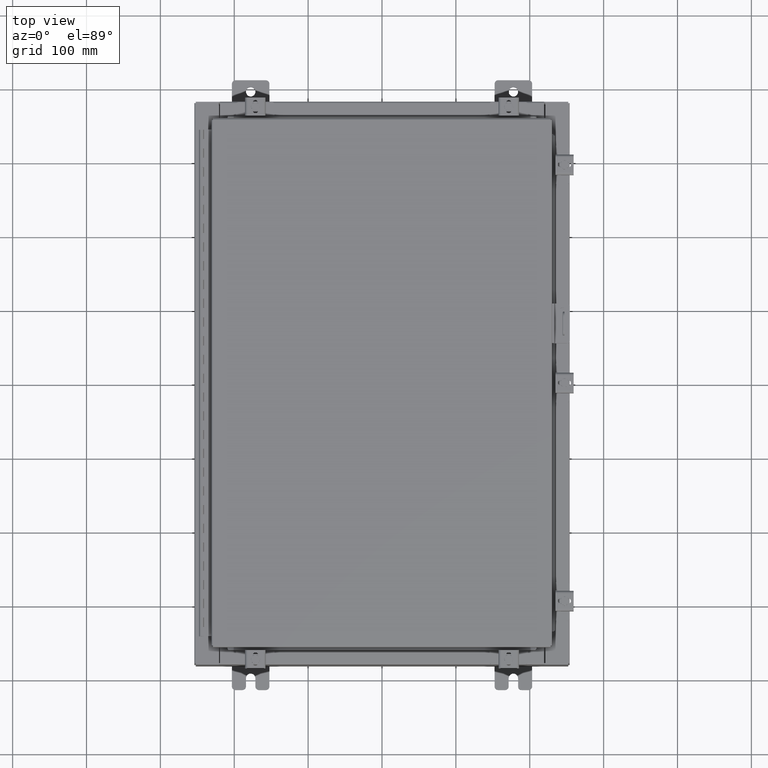
[diagram: clean part render]
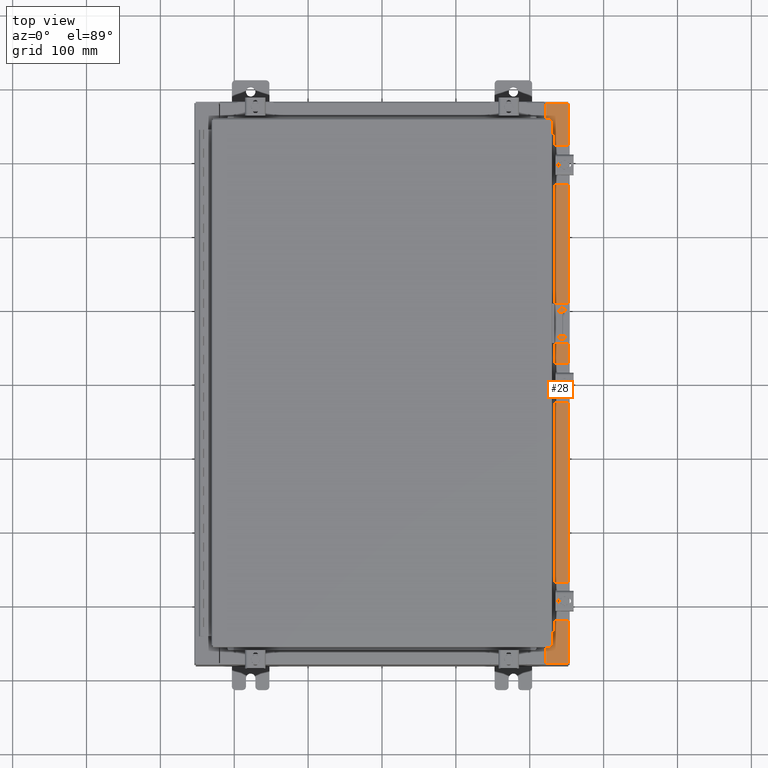
[diagram: same view with one face highlighted and labeled with its STEP entity id]
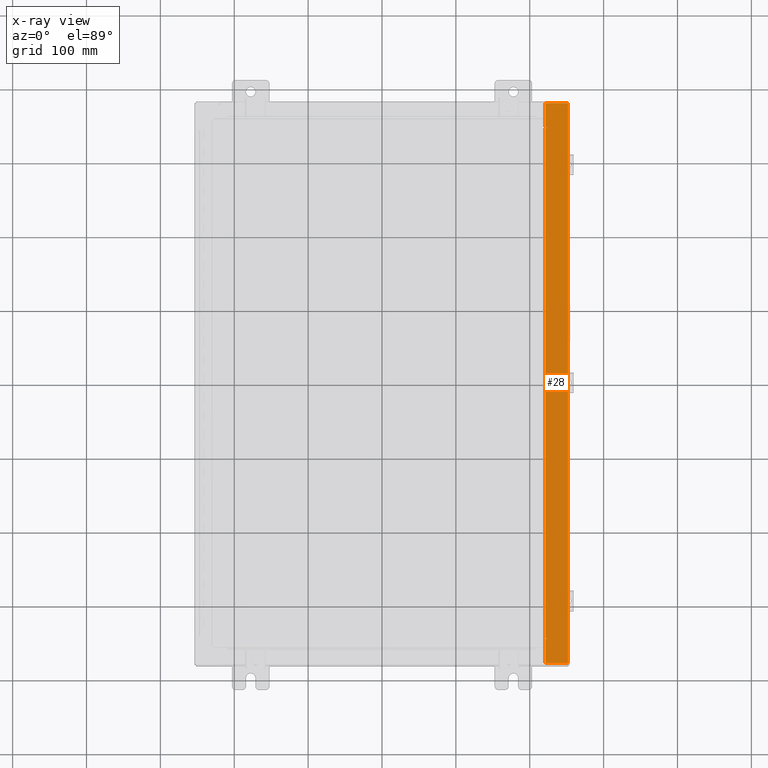
[diagram: x-ray of the same camera — body ghosted, the highlighted face saturated]
A machine part, top view. The second image highlights one B-rep face of the part: STEP entity #28.
The next image is the same camera in x-ray: the body ghosted, the highlighted face saturated — about 0% of this face is hidden behind the body in this view.
In plain terms, the highlighted planar face has unit normal (-0, 0, -1).
Its self-contained STEP definition (entity closure, byte-faithful):
#28 = ADVANCED_FACE ( 'NONE', ( #30590 ), #27721, .F. ) ;
#209 = DIRECTION ( 'NONE',  ( 1.000000000000000000, 0.0000000000000000000, 0.0000000000000000000 ) ) ;
#392 = CARTESIAN_POINT ( 'NONE',  ( 8.712700000000021200, 13.59375000000000900, 5.925300000000009800 ) ) ;
#757 = CARTESIAN_POINT ( 'NONE',  ( 9.912300000000019700, -14.92529999999999800, 5.925300000000001800 ) ) ;
#901 = LINE ( 'NONE', #8756, #24260 ) ;
#919 = EDGE_LOOP ( 'NONE', ( #20405, #15350, #28778, #27911, #6525, #11986, #4230, #24853, #25767, #17332, #9959, #15531 ) ) ;
#1775 = EDGE_CURVE ( 'NONE', #2051, #13513, #27248, .T. ) ;
#1798 = LINE ( 'NONE', #17018, #16444 ) ;
#2051 = VERTEX_POINT ( 'NONE', #22621 ) ;
#2862 = EDGE_CURVE ( 'NONE', #8810, #36707, #27021, .T. ) ;
#3155 = VERTEX_POINT ( 'NONE', #21718 ) ;
#4036 = CARTESIAN_POINT ( 'NONE',  ( 9.912300000000019700, -14.92529999999999800, 5.925300000000001800 ) ) ;
#4065 = DIRECTION ( 'NONE',  ( -1.000000000000000000, 0.0000000000000000000, 0.0000000000000000000 ) ) ;
#4230 = ORIENTED_EDGE ( 'NONE', *, *, #29512, .F. ) ;
#6309 = LINE ( 'NONE', #16668, #20065 ) ;
#6525 = ORIENTED_EDGE ( 'NONE', *, *, #24156, .T. ) ;
#7410 = CIRCLE ( 'NONE', #24838, 0.01867499999999949400 ) ;
#8103 = DIRECTION ( 'NONE',  ( 7.132762385546378400E-015, 0.0000000000000000000, 1.000000000000000000 ) ) ;
#8744 = VERTEX_POINT ( 'NONE', #17722 ) ;
#8756 = CARTESIAN_POINT ( 'NONE',  ( 6.913922522733892400E-014, -14.92530000000001400, 5.925300000000072800 ) ) ;
#8777 = VECTOR ( 'NONE', #23819, 39.37007874015748100 ) ;
#8810 = VERTEX_POINT ( 'NONE', #9234 ) ;
#8916 = CARTESIAN_POINT ( 'NONE',  ( 8.699700000000019500, -14.92529999999999800, 5.925300000000009800 ) ) ;
#9234 = CARTESIAN_POINT ( 'NONE',  ( 8.699700000000019500, -13.63109999999999800, 5.925300000000009800 ) ) ;
#9959 = ORIENTED_EDGE ( 'NONE', *, *, #25822, .F. ) ;
#11132 = CARTESIAN_POINT ( 'NONE',  ( 8.750050000000021200, 13.63110000000000700, 5.925300000000009800 ) ) ;
#11161 = CARTESIAN_POINT ( 'NONE',  ( 8.750050000000021200, 13.59375000000000900, 5.925300000000009800 ) ) ;
#11661 = VECTOR ( 'NONE', #24189, 39.37007874015748100 ) ;
#11986 = ORIENTED_EDGE ( 'NONE', *, *, #16345, .T. ) ;
#12758 = VECTOR ( 'NONE', #35221, 39.37007874015748100 ) ;
#13513 = VERTEX_POINT ( 'NONE', #4036 ) ;
#15350 = ORIENTED_EDGE ( 'NONE', *, *, #31064, .T. ) ;
#15460 = EDGE_CURVE ( 'NONE', #29690, #13513, #901, .T. ) ;
#15531 = ORIENTED_EDGE ( 'NONE', *, *, #20530, .F. ) ;
#15995 = DIRECTION ( 'NONE',  ( -7.132762385546378400E-015, 0.0000000000000000000, -1.000000000000000000 ) ) ;
#16345 = EDGE_CURVE ( 'NONE', #26586, #3155, #6309, .T. ) ;
#16444 = VECTOR ( 'NONE', #19993, 39.37007874015748100 ) ;
#16668 = CARTESIAN_POINT ( 'NONE',  ( 8.699700000000019500, 0.0000000000000000000, 5.925300000000009800 ) ) ;
#17018 = CARTESIAN_POINT ( 'NONE',  ( 8.750050000000021200, 13.63110000000000700, 5.925300000000009800 ) ) ;
#17332 = ORIENTED_EDGE ( 'NONE', *, *, #29672, .F. ) ;
#17722 = CARTESIAN_POINT ( 'NONE',  ( 8.750050000000021200, -13.59375000000000000, 5.925300000000009800 ) ) ;
#17730 = DIRECTION ( 'NONE',  ( 7.132762385546378400E-015, 0.0000000000000000000, 1.000000000000000000 ) ) ;
#18264 = VERTEX_POINT ( 'NONE', #20237 ) ;
#18610 = DIRECTION ( 'NONE',  ( 0.0000000000000000000, -1.000000000000000000, 0.0000000000000000000 ) ) ;
#19071 = DIRECTION ( 'NONE',  ( -1.000000000000000000, 0.0000000000000000000, 7.132762385546378400E-015 ) ) ;
#19274 = VECTOR ( 'NONE', #20443, 39.37007874015748100 ) ;
#19993 = DIRECTION ( 'NONE',  ( -1.000000000000000000, 0.0000000000000000000, 0.0000000000000000000 ) ) ;
#20065 = VECTOR ( 'NONE', #37162, 39.37007874015748100 ) ;
#20237 = CARTESIAN_POINT ( 'NONE',  ( 8.712700000000021200, 13.59375000000000900, 5.925300000000009800 ) ) ;
#20405 = ORIENTED_EDGE ( 'NONE', *, *, #2862, .F. ) ;
#20443 = DIRECTION ( 'NONE',  ( 1.000000000000000000, 0.0000000000000000000, 0.0000000000000000000 ) ) ;
#20530 = EDGE_CURVE ( 'NONE', #36707, #8744, #7410, .T. ) ;
#21718 = CARTESIAN_POINT ( 'NONE',  ( 8.699700000000019500, 13.63110000000000700, 5.925300000000009800 ) ) ;
#21892 = CARTESIAN_POINT ( 'NONE',  ( 4.252457061909005100E-014, 0.0000000000000000000, 5.925300000000072800 ) ) ;
#22282 = LINE ( 'NONE', #31027, #23207 ) ;
#22621 = CARTESIAN_POINT ( 'NONE',  ( 9.912300000000019700, 14.92530000000000700, 5.925300000000001800 ) ) ;
#23131 = CARTESIAN_POINT ( 'NONE',  ( 8.712700000000021200, -13.59375000000000000, 5.925300000000009800 ) ) ;
#23207 = VECTOR ( 'NONE', #33989, 39.37007874015748100 ) ;
#23263 = CARTESIAN_POINT ( 'NONE',  ( 8.699700000000019500, -13.63109999999999800, 5.925300000000009800 ) ) ;
#23438 = CARTESIAN_POINT ( 'NONE',  ( 8.712700000000021200, -13.59375000000000000, 5.925300000000009800 ) ) ;
#23543 = LINE ( 'NONE', #27462, #37286 ) ;
#23819 = DIRECTION ( 'NONE',  ( 1.000000000000000000, 0.0000000000000000000, 0.0000000000000000000 ) ) ;
#24156 = EDGE_CURVE ( 'NONE', #2051, #26586, #22282, .T. ) ;
#24189 = DIRECTION ( 'NONE',  ( -0.0000000000000000000, -1.000000000000000000, -0.0000000000000000000 ) ) ;
#24260 = VECTOR ( 'NONE', #35177, 39.37007874015748100 ) ;
#24287 = VERTEX_POINT ( 'NONE', #11161 ) ;
#24838 = AXIS2_PLACEMENT_3D ( 'NONE', #25669, #8103, #28579 ) ;
#24853 = ORIENTED_EDGE ( 'NONE', *, *, #27617, .F. ) ;
#25669 = CARTESIAN_POINT ( 'NONE',  ( 8.750050000000021200, -13.61242500000000000, 5.925300000000009800 ) ) ;
#25767 = ORIENTED_EDGE ( 'NONE', *, *, #31587, .F. ) ;
#25822 = EDGE_CURVE ( 'NONE', #8744, #30245, #23543, .T. ) ;
#26252 = VECTOR ( 'NONE', #18610, 39.37007874015748100 ) ;
#26508 = LINE ( 'NONE', #23438, #12758 ) ;
#26586 = VERTEX_POINT ( 'NONE', #29433 ) ;
#27021 = LINE ( 'NONE', #23263, #19274 ) ;
#27248 = LINE ( 'NONE', #757, #11661 ) ;
#27462 = CARTESIAN_POINT ( 'NONE',  ( 8.750050000000021200, -13.59375000000000000, 5.925300000000009800 ) ) ;
#27617 = EDGE_CURVE ( 'NONE', #24287, #32416, #29383, .T. ) ;
#27721 = PLANE ( 'NONE',  #28603 ) ;
#27911 = ORIENTED_EDGE ( 'NONE', *, *, #1775, .F. ) ;
#28579 = DIRECTION ( 'NONE',  ( 1.000000000000000000, 0.0000000000000000000, 0.0000000000000000000 ) ) ;
#28603 = AXIS2_PLACEMENT_3D ( 'NONE', #21892, #15995, #19071 ) ;
#28778 = ORIENTED_EDGE ( 'NONE', *, *, #15460, .T. ) ;
#28834 = AXIS2_PLACEMENT_3D ( 'NONE', #35302, #17730, #209 ) ;
#29383 = CIRCLE ( 'NONE', #28834, 0.01867499999999949400 ) ;
#29433 = CARTESIAN_POINT ( 'NONE',  ( 8.699700000000019500, 14.92530000000000700, 5.925300000000009800 ) ) ;
#29512 = EDGE_CURVE ( 'NONE', #32416, #3155, #1798, .T. ) ;
#29672 = EDGE_CURVE ( 'NONE', #30245, #18264, #26508, .T. ) ;
#29690 = VERTEX_POINT ( 'NONE', #8916 ) ;
#30245 = VERTEX_POINT ( 'NONE', #23131 ) ;
#30310 = LINE ( 'NONE', #392, #8777 ) ;
#30590 = FACE_OUTER_BOUND ( 'NONE', #919, .T. ) ;
#31027 = CARTESIAN_POINT ( 'NONE',  ( 4.252457061909005100E-014, 14.92530000000000500, 5.925300000000072800 ) ) ;
#31064 = EDGE_CURVE ( 'NONE', #8810, #29690, #33106, .T. ) ;
#31587 = EDGE_CURVE ( 'NONE', #18264, #24287, #30310, .T. ) ;
#32416 = VERTEX_POINT ( 'NONE', #11132 ) ;
#33106 = LINE ( 'NONE', #33166, #26252 ) ;
#33166 = CARTESIAN_POINT ( 'NONE',  ( 8.699700000000019500, 0.0000000000000000000, 5.925300000000009800 ) ) ;
#33408 = CARTESIAN_POINT ( 'NONE',  ( 8.750050000000021200, -13.63109999999999800, 5.925300000000009800 ) ) ;
#33989 = DIRECTION ( 'NONE',  ( -1.000000000000000000, 0.0000000000000000000, 7.132762385546378400E-015 ) ) ;
#35177 = DIRECTION ( 'NONE',  ( 1.000000000000000000, 1.783190596386595000E-015, -7.132762385546378400E-015 ) ) ;
#35221 = DIRECTION ( 'NONE',  ( -0.0000000000000000000, 1.000000000000000000, -0.0000000000000000000 ) ) ;
#35302 = CARTESIAN_POINT ( 'NONE',  ( 8.750050000000021200, 13.61242500000000900, 5.925300000000009800 ) ) ;
#36707 = VERTEX_POINT ( 'NONE', #33408 ) ;
#37162 = DIRECTION ( 'NONE',  ( 0.0000000000000000000, -1.000000000000000000, 0.0000000000000000000 ) ) ;
#37286 = VECTOR ( 'NONE', #4065, 39.37007874015748100 ) ;